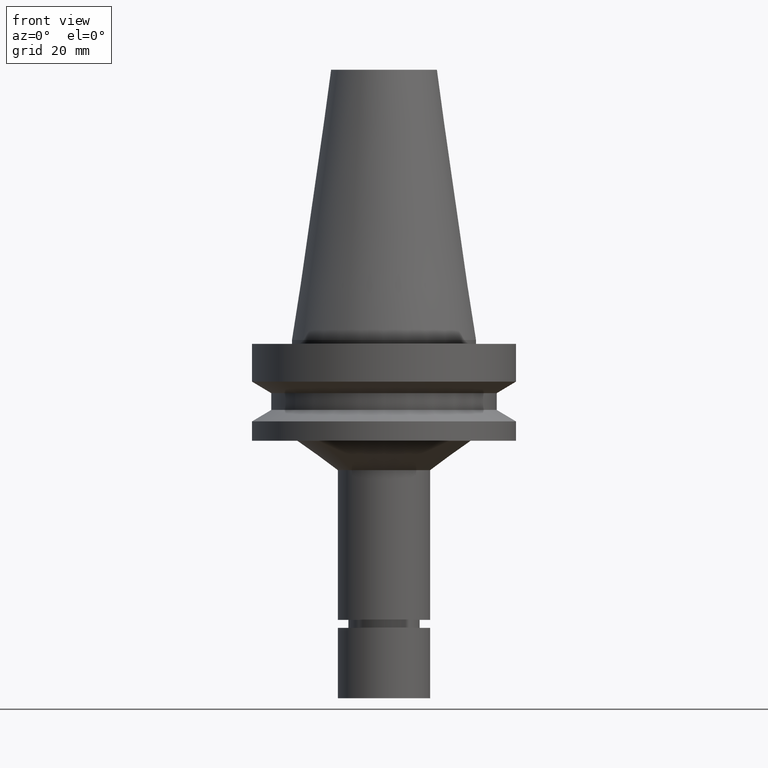
[diagram: clean part render]
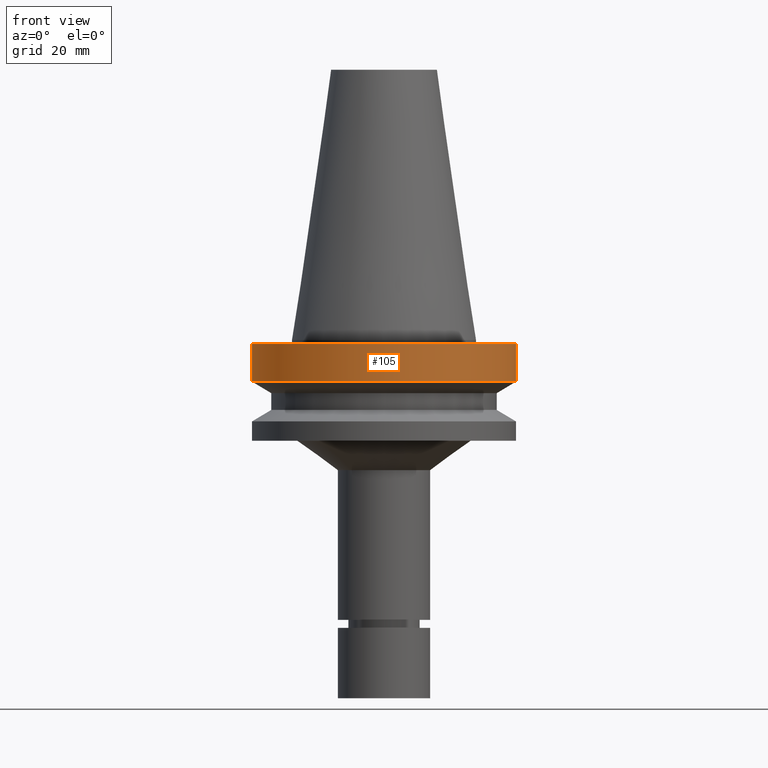
[diagram: same view with one face highlighted and labeled with its STEP entity id]
A machine part, front view. The second image highlights one B-rep face of the part: STEP entity #105.
In plain terms, the highlighted cylindrical surface (bore or boss wall) has radius 50 mm, axis along (-0, -0, 1).
Its self-contained STEP definition (entity closure, byte-faithful):
#96=EDGE_CURVE('Unnamed[1]',#233,#233,#234,.T.);
#105=ADVANCED_FACE('Unnamed[1]',(#247,#248),#249,.T.);
#158=EDGE_CURVE('Unnamed[1]',#328,#328,#329,.T.);
#233=VERTEX_POINT('',#416);
#234=CIRCLE('',#417,50.0);
#247=FACE_BOUND('',#433,.T.);
#248=FACE_BOUND('',#434,.T.);
#249=CYLINDRICAL_SURFACE('',#435,50.0);
#328=VERTEX_POINT('',#534);
#329=CIRCLE('',#535,50.0);
#416=CARTESIAN_POINT('',(9.61347737330674E-016,50.0,-15.7));
#417=AXIS2_PLACEMENT_3D('',#614,#615,#616);
#433=EDGE_LOOP('',(#630));
#434=EDGE_LOOP('',(#631));
#435=AXIS2_PLACEMENT_3D('',#632,#633,#634);
#534=CARTESIAN_POINT('',(9.18485099360509E-017,50.0,-1.49999999999999));
#535=AXIS2_PLACEMENT_3D('',#720,#721,#722);
#614=CARTESIAN_POINT('',(9.61347737330675E-016,1.48191778867216E-014,-15.7));
#615=DIRECTION('',(-6.12323399573677E-017,-1.52619998477336E-017,1.0));
#616=DIRECTION('',(-5.76168069387474E-033,1.0,1.52619998477336E-017));
#630=ORIENTED_EDGE('',*,*,#158,.F.);
#631=ORIENTED_EDGE('',*,*,#96,.T.);
#632=CARTESIAN_POINT('',(5.26598123633363E-016,1.47108176878027E-014,-8.60000000000002));
#633=DIRECTION('',(-6.12323399573677E-017,-1.52619998477336E-017,1.0));
#634=DIRECTION('',(-5.76168069387474E-033,1.0,1.52619998477336E-017));
#720=CARTESIAN_POINT('',(9.18485099360515E-017,1.46024574888838E-014,-1.5));
#721=DIRECTION('',(-6.12323399573677E-017,-1.52619998477336E-017,1.0));
#722=DIRECTION('',(-5.76168069387474E-033,1.0,1.52619998477336E-017));